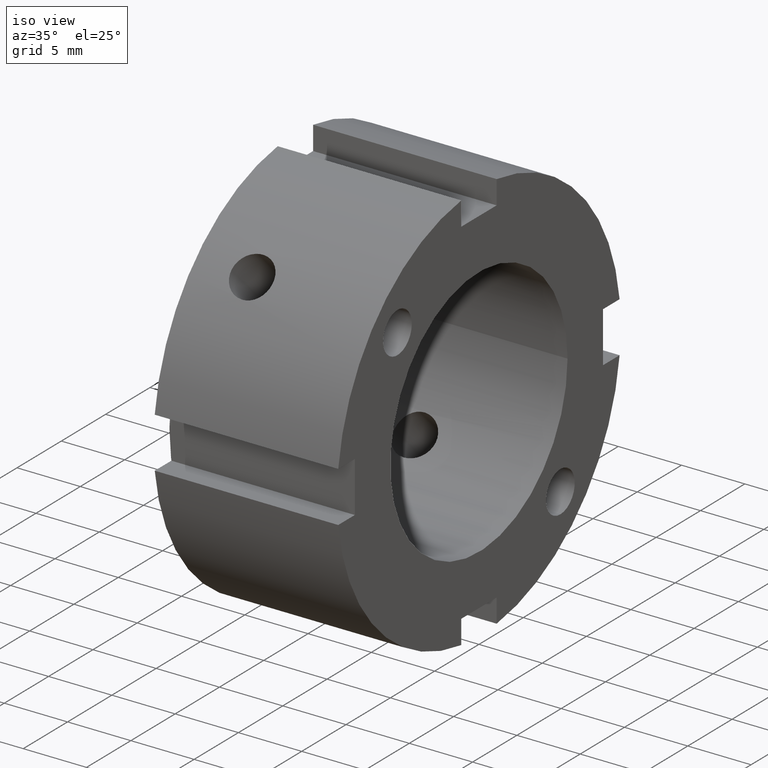
[diagram: clean part render]
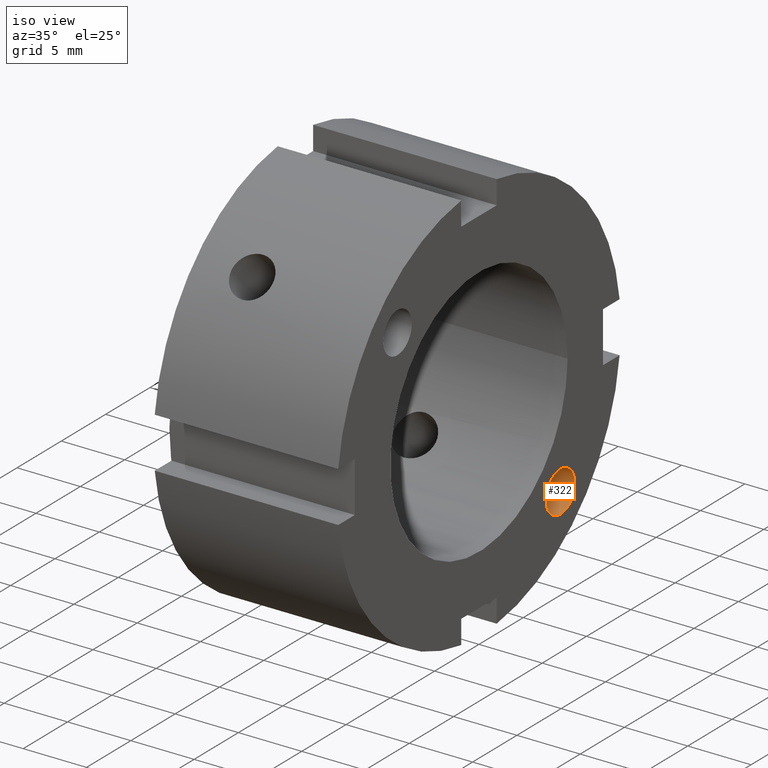
[diagram: same view with one face highlighted and labeled with its STEP entity id]
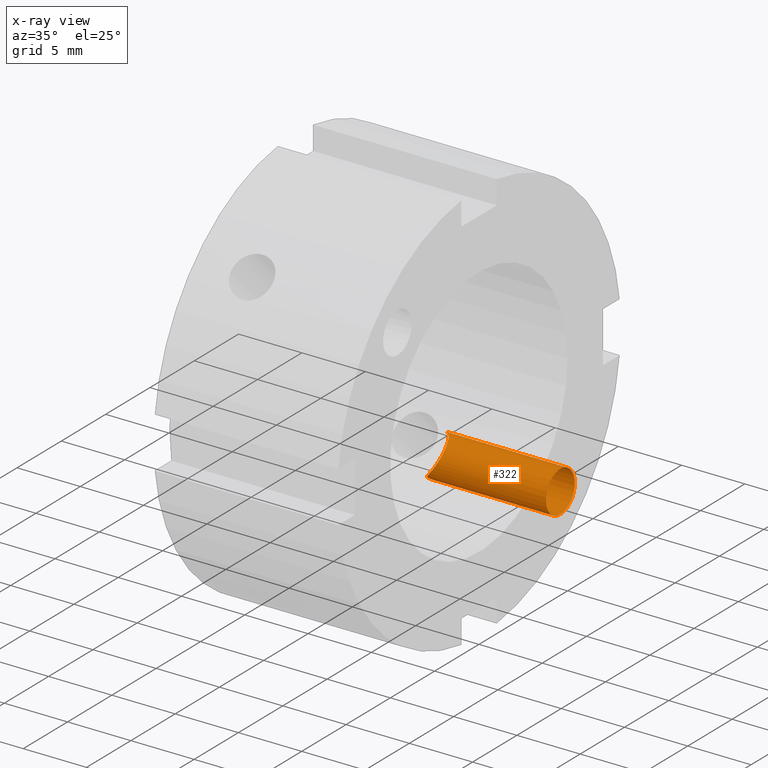
[diagram: x-ray of the same camera — body ghosted, the highlighted face saturated]
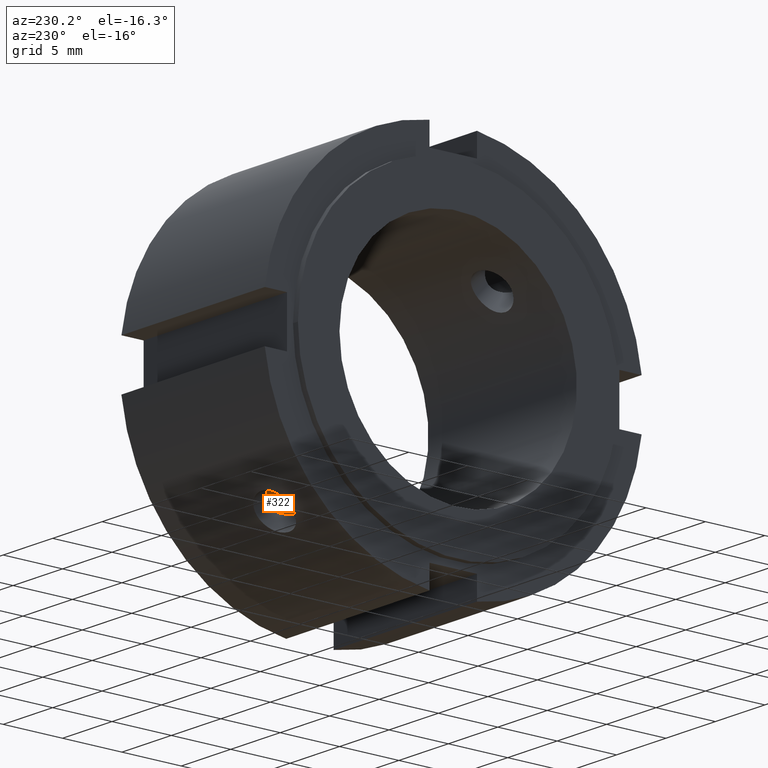
[diagram: same view with one face highlighted and labeled with its STEP entity id]
A machine part, iso view. The second image highlights one B-rep face of the part: STEP entity #322.
The next image is the same camera in x-ray: the body ghosted, the highlighted face saturated — about 0% of this face is hidden behind the body in this view.
A second angle (auxiliary view) of the same face is appended — the face is thin or edge-on in the first view.
In plain terms, the highlighted cylindrical surface (bore or boss wall) has radius 1.621 mm, axis along (1, 0, 0).
Its self-contained STEP definition (entity closure, byte-faithful):
#241=CARTESIAN_POINT('',(9.999999999999996,9.192388155425117,-9.192388155425117));
#242=DIRECTION('',(1.0,0.0,0.0));
#243=DIRECTION('',(0.0,0.0,-1.0));
#244=AXIS2_PLACEMENT_3D('',#241,#242,#243);
#245=CYLINDRICAL_SURFACE('',#244,1.621);
#246=CARTESIAN_POINT('',(5.307991883009919,10.338608247728512,-8.046168063121723));
#247=VERTEX_POINT('',#246);
#248=CARTESIAN_POINT('',(5.307991883009919,10.338608247728512,-8.046168063121723));
#249=CARTESIAN_POINT('',(5.307991883009919,10.290342137769326,-7.997901953162538));
#250=CARTESIAN_POINT('',(5.328608906915764,10.248867421248955,-7.961860960137659));
#251=CARTESIAN_POINT('',(5.379645951331562,10.167811954966764,-7.896666365945285));
#252=CARTESIAN_POINT('',(5.411230953491391,10.128496317576708,-7.868101955752572));
#253=CARTESIAN_POINT('',(5.515285602255861,10.006061582691961,-7.786979145157567));
#254=CARTESIAN_POINT('',(5.596034957619269,9.920186188864102,-7.740332786636991));
#255=CARTESIAN_POINT('',(5.850594408036052,9.63688703357367,-7.620070827574702));
#256=CARTESIAN_POINT('',(6.032903735948267,9.417864689002517,-7.571388155425116));
#257=CARTESIAN_POINT('',(6.312430421401476,9.008532071238733,-7.571388155425116));
#258=CARTESIAN_POINT('',(6.433314181594366,8.800213257153491,-7.6047462166001));
#259=CARTESIAN_POINT('',(6.560102959408969,8.498345314220897,-7.723498291297575));
#260=CARTESIAN_POINT('',(6.593607110198377,8.399313119949044,-7.774244746791153));
#261=CARTESIAN_POINT('',(6.638553059776974,8.212582298400816,-7.896225506185688));
#262=CARTESIAN_POINT('',(6.649999999999996,8.124881513565644,-7.967454612677805));
#263=CARTESIAN_POINT('',(6.649999999999996,7.967454612677813,-8.124881513565633));
#264=CARTESIAN_POINT('',(6.638553059776976,7.896225506185694,-8.212582298400807));
#265=CARTESIAN_POINT('',(6.59360711019838,7.774244746791156,-8.39931311994904));
#266=CARTESIAN_POINT('',(6.560102959408971,7.723498291297576,-8.49834531422089));
#267=CARTESIAN_POINT('',(6.433314181594367,7.6047462166001,-8.800213257153487));
#268=CARTESIAN_POINT('',(6.312430421401477,7.571388155425121,-9.008532071238731));
#269=CARTESIAN_POINT('',(6.032903735948269,7.571388155425121,-9.417864689002517));
#270=CARTESIAN_POINT('',(5.850594408036052,7.6200708275747,-9.63688703357367));
#271=CARTESIAN_POINT('',(5.596034957619269,7.74033278663699,-9.920186188864104));
#272=CARTESIAN_POINT('',(5.515285602255862,7.786979145157567,-10.006061582691963));
#273=CARTESIAN_POINT('',(5.411230953491396,7.868101955752572,-10.128496317576714));
#274=CARTESIAN_POINT('',(5.379645951331557,7.896666365945285,-10.167811954966764));
#275=CARTESIAN_POINT('',(5.32860890691576,7.961860960137659,-10.248867421248955));
#276=CARTESIAN_POINT('',(5.307991883009919,7.99790195316254,-10.290342137769326));
#277=CARTESIAN_POINT('',(5.307991883009919,8.094434173080908,-10.386874357687695));
#278=CARTESIAN_POINT('',(5.328608906915761,8.135908889601282,-10.422915350712579));
#279=CARTESIAN_POINT('',(5.379645951331562,8.216964355883473,-10.48810994490495));
#280=CARTESIAN_POINT('',(5.411230953491395,8.256279993273527,-10.516674355097662));
#281=CARTESIAN_POINT('',(5.515285602255863,8.378714728158275,-10.597797165692667));
#282=CARTESIAN_POINT('',(5.596034957619269,8.464590121986133,-10.644443524213244));
#283=CARTESIAN_POINT('',(5.850594408036052,8.747889277276567,-10.764705483275534));
#284=CARTESIAN_POINT('',(6.032903735948269,8.966911621847718,-10.81338815542512));
#285=CARTESIAN_POINT('',(6.312430421401476,9.376244239611504,-10.81338815542512));
#286=CARTESIAN_POINT('',(6.433314181594366,9.584563053696746,-10.780030094250135));
#287=CARTESIAN_POINT('',(6.560102959408971,9.886430996629342,-10.661278019552661));
#288=CARTESIAN_POINT('',(6.59360711019838,9.985463190901191,-10.61053156405908));
#289=CARTESIAN_POINT('',(6.638553059776977,10.172194012449422,-10.488550804664543));
#290=CARTESIAN_POINT('',(6.649999999999996,10.259894797284597,-10.417321698172426));
#291=CARTESIAN_POINT('',(6.649999999999996,10.417321698172426,-10.259894797284597));
#292=CARTESIAN_POINT('',(6.638553059776976,10.488550804664545,-10.172194012449424));
#293=CARTESIAN_POINT('',(6.593607110198379,10.610531564059082,-9.985463190901193));
#294=CARTESIAN_POINT('',(6.560102959408969,10.661278019552661,-9.88643099662934));
#295=CARTESIAN_POINT('',(6.433314181594364,10.780030094250137,-9.584563053696744));
#296=CARTESIAN_POINT('',(6.312430421401475,10.813388155425123,-9.376244239611502));
#297=CARTESIAN_POINT('',(6.032903735948265,10.813388155425123,-8.966911621847718));
#298=CARTESIAN_POINT('',(5.85059440803605,10.764705483275534,-8.747889277276567));
#299=CARTESIAN_POINT('',(5.596034957619269,10.644443524213241,-8.464590121986133));
#300=CARTESIAN_POINT('',(5.515285602255861,10.597797165692667,-8.378714728158274));
#301=CARTESIAN_POINT('',(5.411230953491392,10.516674355097662,-8.256279993273523));
#302=CARTESIAN_POINT('',(5.379645951331553,10.488109944904949,-8.216964355883471));
#303=CARTESIAN_POINT('',(5.328608906915758,10.422915350712575,-8.135908889601282));
#304=CARTESIAN_POINT('',(5.307991883009919,10.386874357687695,-8.094434173080908));
#305=CARTESIAN_POINT('',(5.307991883009919,10.338608247728512,-8.046168063121723));
#306=B_SPLINE_CURVE_WITH_KNOTS('',3,(#248,#249,#250,#251,#252,#253,#254,#255,#256,#257,#258,#259,#260,#261,#262,#263,#264,#265,#266,#267,#268,#269,#270,#271,#272,#273,#274,#275,#276,#277,#278,#279,#280,#281,#282,#283,#284,#285,#286,#287,#288,#289,#290,#291,#292,#293,#294,#295,#296,#297,#298,#299,#300,#301,#302,#303,#304,#305),.UNSPECIFIED.,.T.,.U.,(4,2,2,2,2,2,2,2,2,2,2,2,2,2,2,2,2,2,2,2,2,2,2,2,2,2,2,2,4),(0.0,0.020477576192181,0.040955152384362,0.081910304768724,0.163820609537448,0.230611187032827,0.264006475780517,0.297401764528207,0.330797053275897,0.364192342023587,0.430982919518967,0.512893224287691,0.553848376672053,0.574325952864234,0.594803529056415,0.615281105248596,0.635758681440777,0.676713833825139,0.758624138593863,0.825414716089243,0.858810004836933,0.892205293584623,0.925600582332313,0.958995871080003,1.025786448575383,1.107696753344106,1.148651905728468,1.169129481920649,1.18960705811283),.UNSPECIFIED.);
#307=EDGE_CURVE('',#247,#247,#306,.T.);
#308=ORIENTED_EDGE('',*,*,#307,.F.);
#309=EDGE_LOOP('',(#308));
#310=FACE_OUTER_BOUND('',#309,.T.);
#311=CARTESIAN_POINT('',(14.999999999999996,9.192388155425117,-10.81338815542512));
#312=VERTEX_POINT('',#311);
#313=CARTESIAN_POINT('',(14.999999999999996,9.192388155425117,-9.192388155425117));
#314=DIRECTION('',(-1.0,0.0,0.0));
#315=DIRECTION('',(0.0,0.0,-1.0));
#316=AXIS2_PLACEMENT_3D('',#313,#314,#315);
#317=CIRCLE('',#316,1.621);
#318=EDGE_CURVE('',#312,#312,#317,.T.);
#319=ORIENTED_EDGE('',*,*,#318,.F.);
#320=EDGE_LOOP('',(#319));
#321=FACE_BOUND('',#320,.T.);
#322=ADVANCED_FACE('',(#310,#321),#245,.F.);